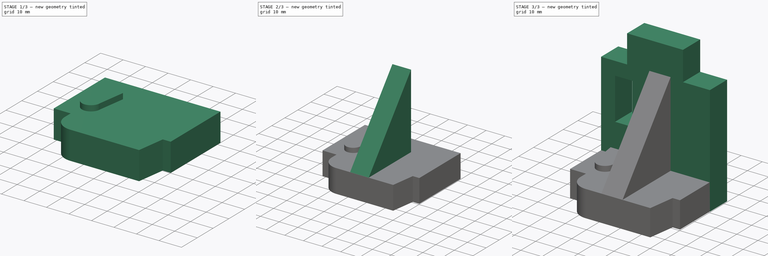
[diagram: build sequence overview — one tinted view per stage of 3, left to right]
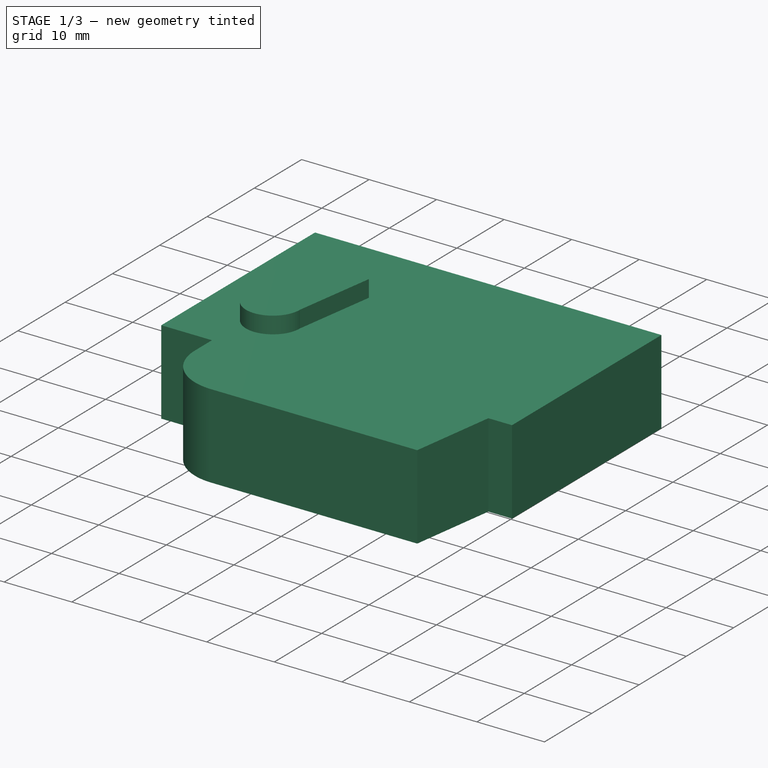
[diagram: stage 1 of 3 — iso view after this stage's code; geometry added in this stage tinted green]
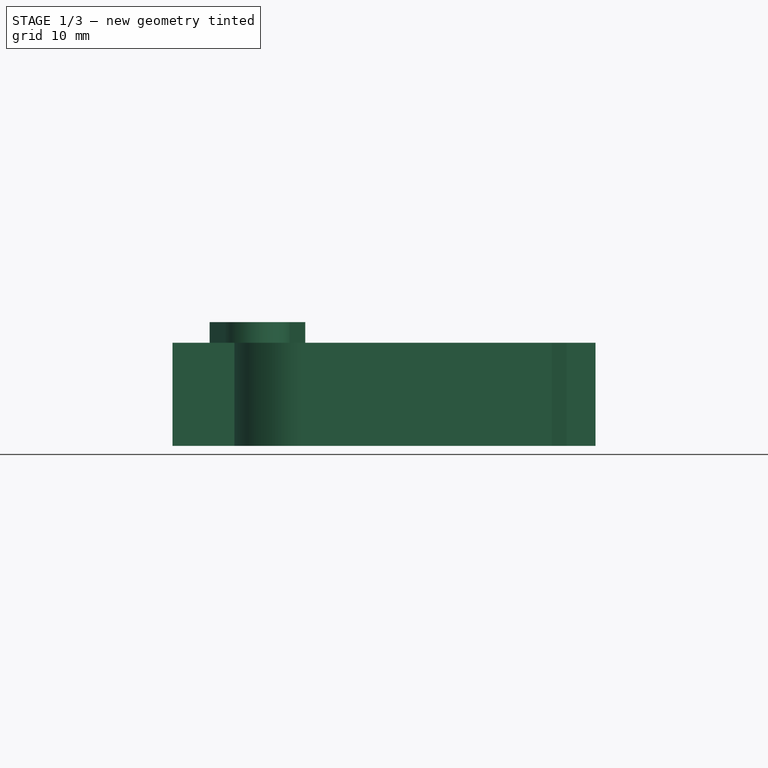
[diagram: stage 1 of 3 — front view after this stage's code; geometry added in this stage tinted green]
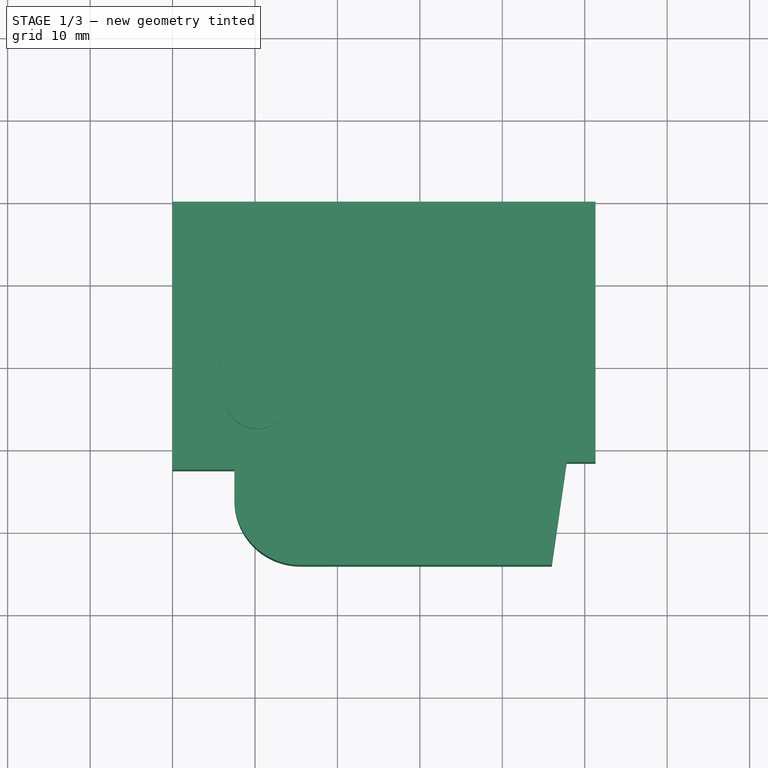
[diagram: stage 1 of 3 — top view after this stage's code; geometry added in this stage tinted green]
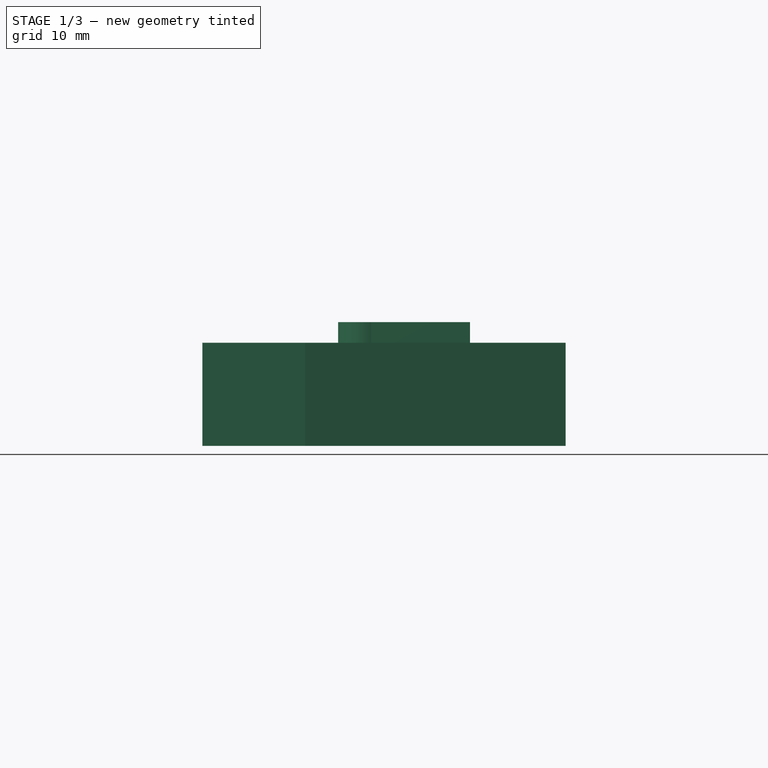
[diagram: stage 1 of 3 — right view after this stage's code; geometry added in this stage tinted green]
FCSTD DOCUMENT  (FreeCAD 0.16R6712 (Git))
Label: pieza-3
License: All rights reserved
LicenseURL: http://en.wikipedia.org/wiki/All_rights_reserved
objects: Sketcher::SketchObject×4, PartDesign::Pad×4, Part::MultiFuse×1
note: 13 computed .brp shape members not serialized (recipe doc carries the construction recipe); baked Part::Feature solids carry a one-line shape summary decoded from their .brp

FEATURE [Sketcher::SketchObject] Sketch
  sketch-geometry (9):
    g0: LineSegment StartX=0 StartY=0 StartZ=0 EndX=51.3 EndY=0 EndZ=0
    g1: LineSegment StartX=51.3 StartY=0 StartZ=0 EndX=51.3 EndY=-31.6 EndZ=0
    g2: LineSegment StartX=51.3 StartY=-31.6 StartZ=0 EndX=47.8 EndY=-31.6 EndZ=0
    g3: LineSegment StartX=47.8 StartY=-31.6 StartZ=0 EndX=46 EndY=-44.0708 EndZ=0
    g4: LineSegment StartX=46 StartY=-44.0708 StartZ=0 EndX=15.5 EndY=-44.0708 EndZ=0
    g5: LineSegment StartX=7.5 StartY=-36.0708 StartZ=0 EndX=7.5 EndY=-32.5 EndZ=0
    g6: LineSegment StartX=7.5 StartY=-32.5 StartZ=0 EndX=0 EndY=-32.5 EndZ=0
    g7: LineSegment StartX=0 StartY=-32.5 StartZ=0 EndX=0 EndY=0 EndZ=0
    g8: ArcOfCircle CenterX=15.5 CenterY=-36.0708 CenterZ=0 NormalX=0 NormalY=0 NormalZ=1 Radius=8 StartAngle=3.14159 EndAngle=4.71239
  constraints (25):
    c: Horizontal(g0)
    c: Coincident(g0,g1)
    c: Coincident(g1,g2)
    c: Horizontal(g2)
    c: Coincident(g2,g3)
    c: Coincident(g3,g4)
    c: Horizontal(g4)
    c: Vertical(g5)
    c: Coincident(g5,g6)
    c: Horizontal(g6)
    c: Coincident(g7,g6)
    c: Coincident(g0,g7)
    c: Vertical(g1)
    c: Vertical(g7)
    c: DistanceX(g0,g0) = 51.3
    c: Tangent(g5,g8) = 1.5708
    c: Tangent(g4,g8) = 1.5708
    c: Radius(g8) = 8
    c: DistanceY(g7,g7) = 32.5
    c: DistanceY(g1,g1) = 31.6
    c: DistanceX(g6,g5) = 7.5
    c: DistanceX(g2,g2) = 3.5
    c: Distance(g3) = 12.6
    c: DistanceX(g4,g4) = 30.5
    c: Coincident(g0,g-1)
FEATURE [PartDesign::Pad] Pad  label="base-inicial"
  Length = 12.5
  Length2 = 100
  Sketch = -> Sketch
  Type = 0
FEATURE [Sketcher::SketchObject] Sketch003
  Placement = pos=(0,0,12.5) rot=(0,0,1;0rad)
  Support = -> Pad [Face11]
  sketch-geometry (5):
    g0: LineSegment StartX=4.5 StartY=-11.6 StartZ=0 EndX=16.1 EndY=-11.6 EndZ=0
    g1: LineSegment StartX=16.1 StartY=-11.6 StartZ=0 EndX=14.3 EndY=-23.6 EndZ=0
    g2: LineSegment StartX=6.3 StartY=-23.6 StartZ=0 EndX=4.5 EndY=-11.6 EndZ=0
    g3: ArcOfCircle CenterX=10.3 CenterY=-23.6 CenterZ=0 NormalX=0 NormalY=0 NormalZ=1 Radius=4 StartAngle=3.14159 EndAngle=6.28319
    g4: LineSegment [constr] StartX=6.3 StartY=-23.6 StartZ=0 EndX=14.3 EndY=-23.6 EndZ=0
  constraints (15):
    c: DistanceY(g0,g-1) = 11.6
    c: Coincident(g0,g2)
    c: Horizontal(g0)
    c: Coincident(g0,g1)
    c: Equal(g2,g1)
    c: Coincident(g2,g3)
    c: Coincident(g1,g3)
    c: Coincident(g4,g2)
    c: Coincident(g4,g1)
    c: Horizontal(g4)
    c: PointOnObject(g3,g4)
    c: DistanceX(g0,g0) = 11.6
    c: Radius(g3) = 4
    c: DistanceX(g-1,g0) = 4.5
    c: DistanceY(g2,g0) = 12
FEATURE [PartDesign::Pad] Pad003  label="base"
  Length = 2.5
  Length2 = 100
  Sketch = -> Sketch003
  Type = 0
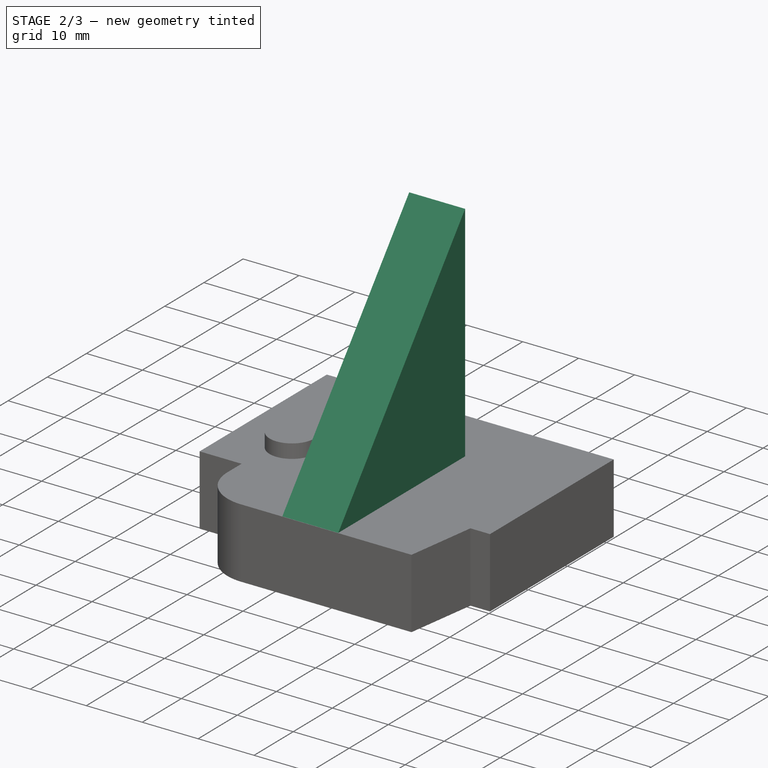
[diagram: stage 2 of 3 — iso view after this stage's code; geometry added in this stage tinted green]
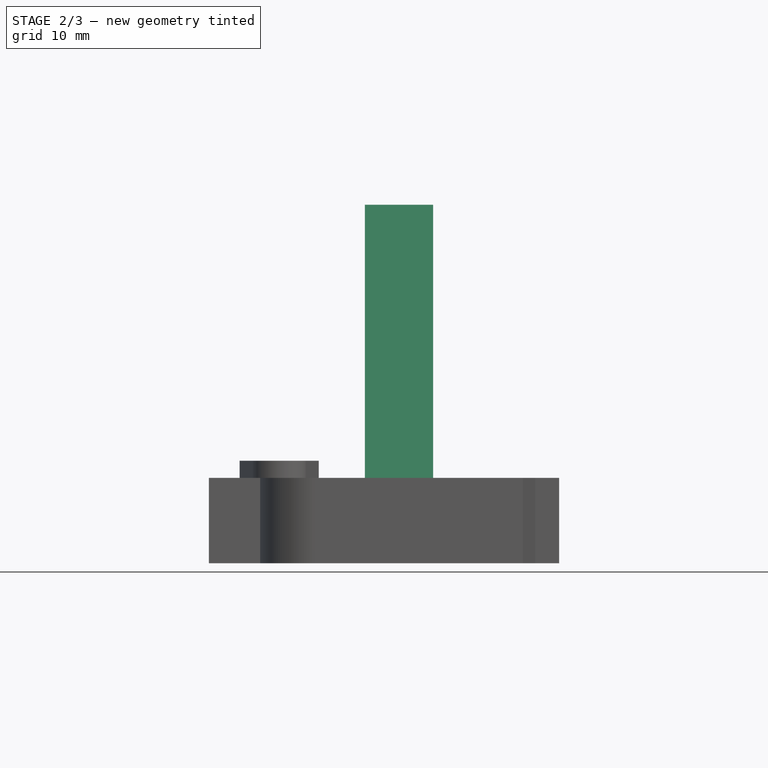
[diagram: stage 2 of 3 — front view after this stage's code; geometry added in this stage tinted green]
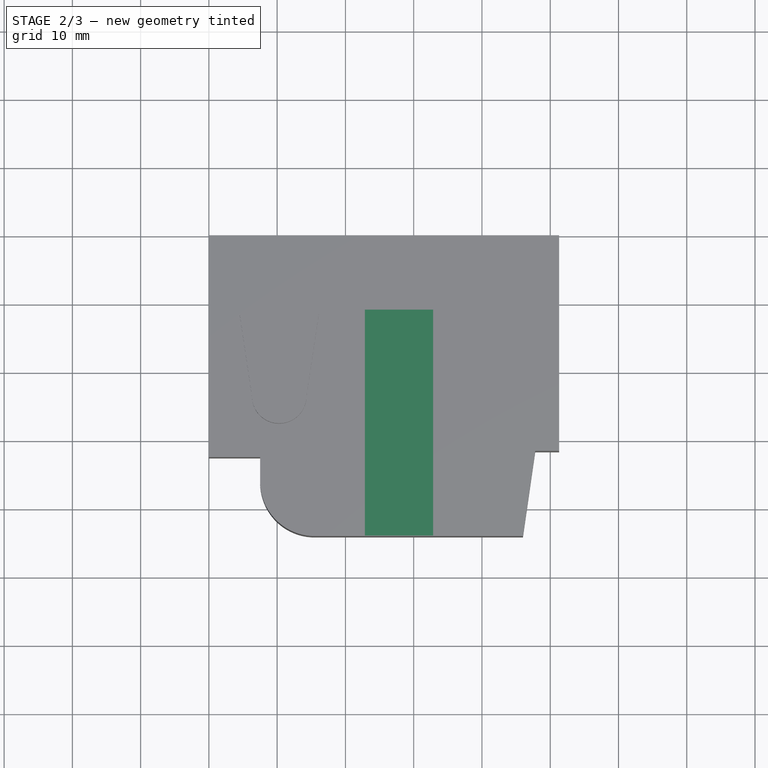
[diagram: stage 2 of 3 — top view after this stage's code; geometry added in this stage tinted green]
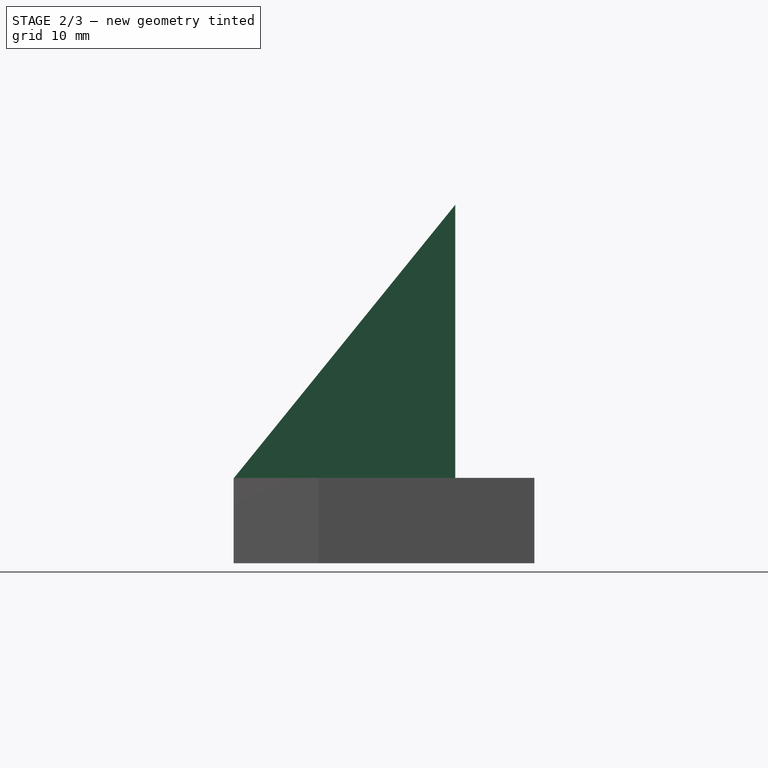
[diagram: stage 2 of 3 — right view after this stage's code; geometry added in this stage tinted green]
FEATURE [Sketcher::SketchObject] Sketch002
  Placement = pos=(22.85,0,0) rot=(0.57735,0.57735,0.57735;2.0944rad)
  sketch-geometry (3):
    g0: LineSegment StartX=-44 StartY=12.5 StartZ=0 EndX=-11.6 EndY=12.5 EndZ=0
    g1: LineSegment StartX=-11.6 StartY=12.5 StartZ=0 EndX=-11.6 EndY=52.5 EndZ=0
    g2: LineSegment StartX=-11.6 StartY=52.5 StartZ=0 EndX=-44 EndY=12.5 EndZ=0
  constraints (9):
    c: Horizontal(g0)
    c: Coincident(g0,g1)
    c: Vertical(g1)
    c: Coincident(g1,g2)
    c: Coincident(g2,g0)
    c: DistanceY(g-1,g0) = 12.5
    c: DistanceX(g0,g-1) = 11.6
    c: DistanceY(g1,g1) = 40
    c: DistanceX(g0,g0) = 32.4
FEATURE [PartDesign::Pad] Pad002  label="escuadra"
  Length = 10
  Length2 = 100
  Placement = pos=(22.85,0,0) rot=(0.57735,0.57735,0.57735;2.0944rad)
  Sketch = -> Sketch002
  Type = 0
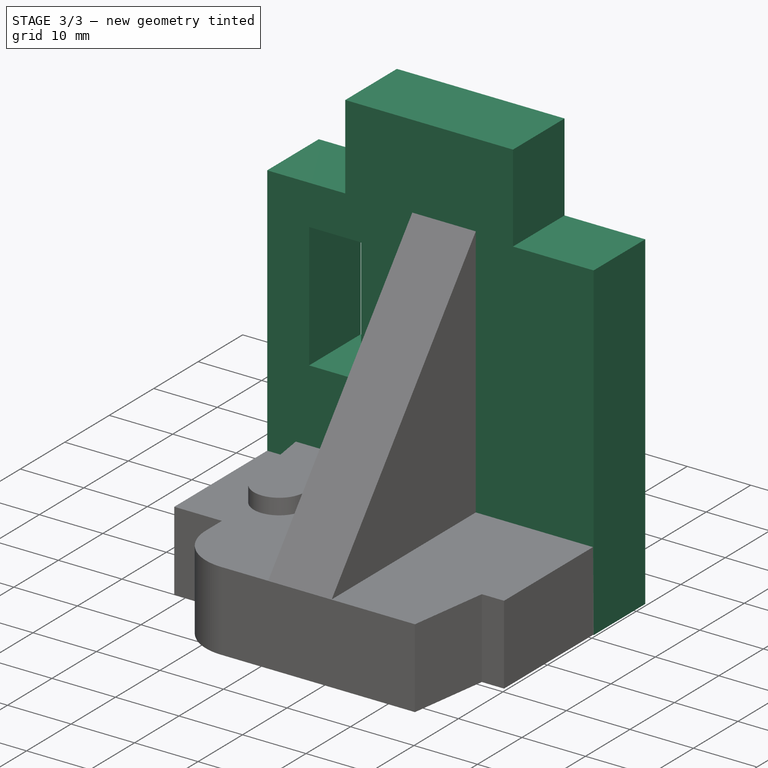
[diagram: stage 3 of 3 — iso view after this stage's code; geometry added in this stage tinted green]
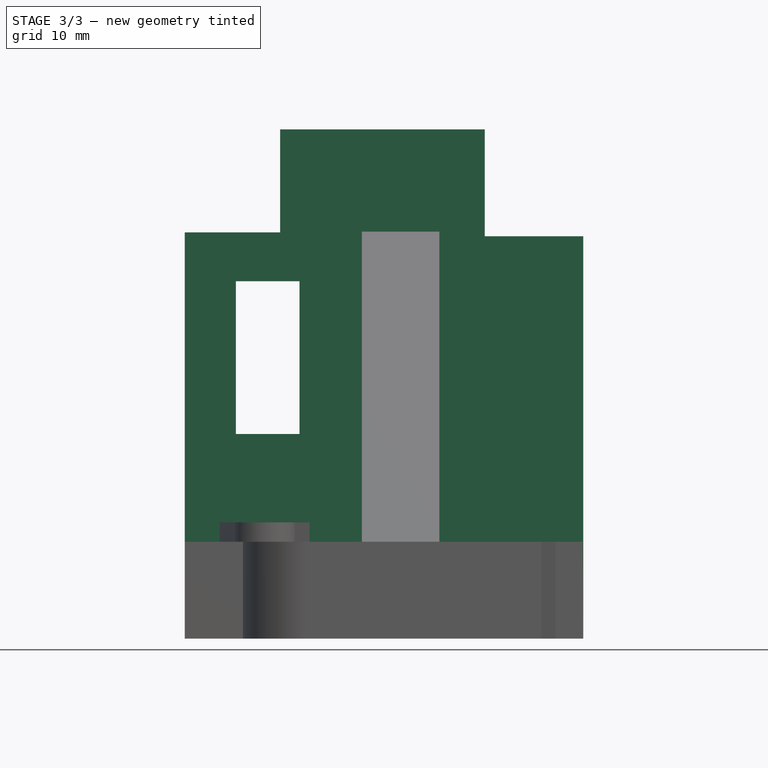
[diagram: stage 3 of 3 — front view after this stage's code; geometry added in this stage tinted green]
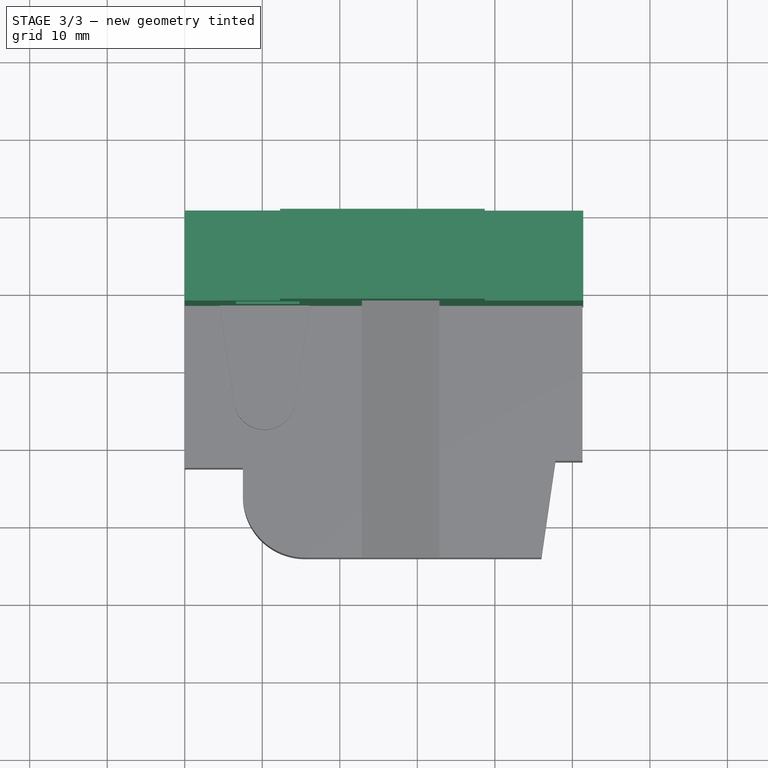
[diagram: stage 3 of 3 — top view after this stage's code; geometry added in this stage tinted green]
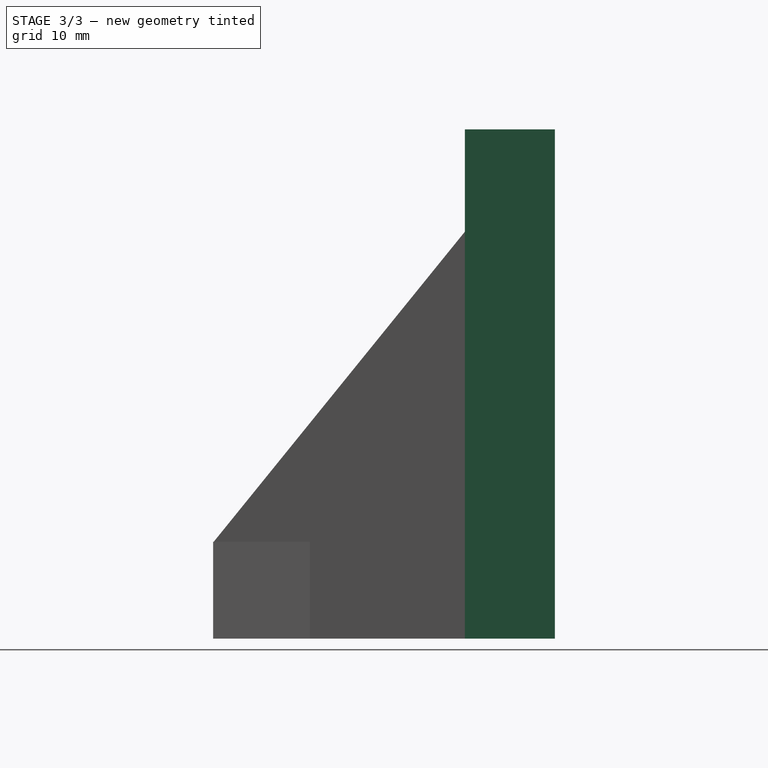
[diagram: stage 3 of 3 — right view after this stage's code; geometry added in this stage tinted green]
FEATURE [Sketcher::SketchObject] Sketch001
  Placement = pos=(0,0,0) rot=(1,0,0;1.5708rad)
  sketch-geometry (12):
    g0: LineSegment StartX=0 StartY=0 StartZ=0 EndX=0 EndY=52.4 EndZ=0
    g1: LineSegment StartX=0 StartY=52.4 StartZ=0 EndX=12.3 EndY=52.4 EndZ=0
    g2: LineSegment StartX=12.3 StartY=52.4 StartZ=0 EndX=12.3 EndY=65.7 EndZ=0
    g3: LineSegment StartX=12.3 StartY=65.7 StartZ=0 EndX=38.7 EndY=65.7 EndZ=0
    g4: LineSegment StartX=38.7 StartY=65.7 StartZ=0 EndX=38.7 EndY=51.9 EndZ=0
    g5: LineSegment StartX=38.7 StartY=51.9 StartZ=0 EndX=51.4 EndY=51.9 EndZ=0
    g6: LineSegment StartX=51.4 StartY=51.9 StartZ=0 EndX=51.4 EndY=0 EndZ=0
    g7: LineSegment StartX=51.4 StartY=0 StartZ=0 EndX=0 EndY=0 EndZ=0
    g8: LineSegment StartX=6.6 StartY=46.1 StartZ=0 EndX=14.8 EndY=46.1 EndZ=0
    g9: LineSegment StartX=14.8 StartY=46.1 StartZ=0 EndX=14.8 EndY=26.4 EndZ=0
    g10: LineSegment StartX=14.8 StartY=26.4 StartZ=0 EndX=6.6 EndY=26.4 EndZ=0
    g11: LineSegment StartX=6.6 StartY=26.4 StartZ=0 EndX=6.6 EndY=46.1 EndZ=0
  constraints (35):
    c: Coincident(g-1,g0)
    c: Vertical(g0)
    c: Coincident(g0,g1)
    c: Horizontal(g1)
    c: Coincident(g1,g2)
    c: Vertical(g2)
    c: Coincident(g2,g3)
    c: Horizontal(g3)
    c: Coincident(g3,g4)
    c: Vertical(g4)
    c: Coincident(g4,g5)
    c: Coincident(g5,g6)
    c: Vertical(g6)
    c: Coincident(g6,g7)
    c: Coincident(g7,g0)
    c: Horizontal(g7)
    c: Horizontal(g5)
    c: DistanceX(g7,g7) = 51.4
    c: DistanceY(g6,g5) = 51.9
    c: DistanceX(g4,g5) = 12.7
    c: DistanceY(g0,g0) = 52.4
    c: DistanceX(g1,g1) = 12.3
    c: DistanceY(g2,g2) = 13.3
    c: Coincident(g8,g9)
    c: Coincident(g9,g10)
    c: Coincident(g10,g11)
    c: Coincident(g11,g8)
    c: Horizontal(g8)
    c: Horizontal(g10)
    c: Vertical(g9)
    c: Vertical(g11)
    c: DistanceX(g0,g8) = 6.6
    c: DistanceY(g8,g0) = 6.3
    c: DistanceX(g8,g8) = 8.2
    c: DistanceY(g9,g9) = 19.7
FEATURE [PartDesign::Pad] Pad001  label="vertical-orificio"
  Length = 11.6
  Length2 = 100
  Placement = pos=(0,0,0) rot=(1,0,0;1.5708rad)
  Sketch = -> Sketch001
  Type = 0
FEATURE [Part::MultiFuse] Fusion  label="Escuadra-central"
  Shapes = -> [Pad003,Pad002,Pad001]
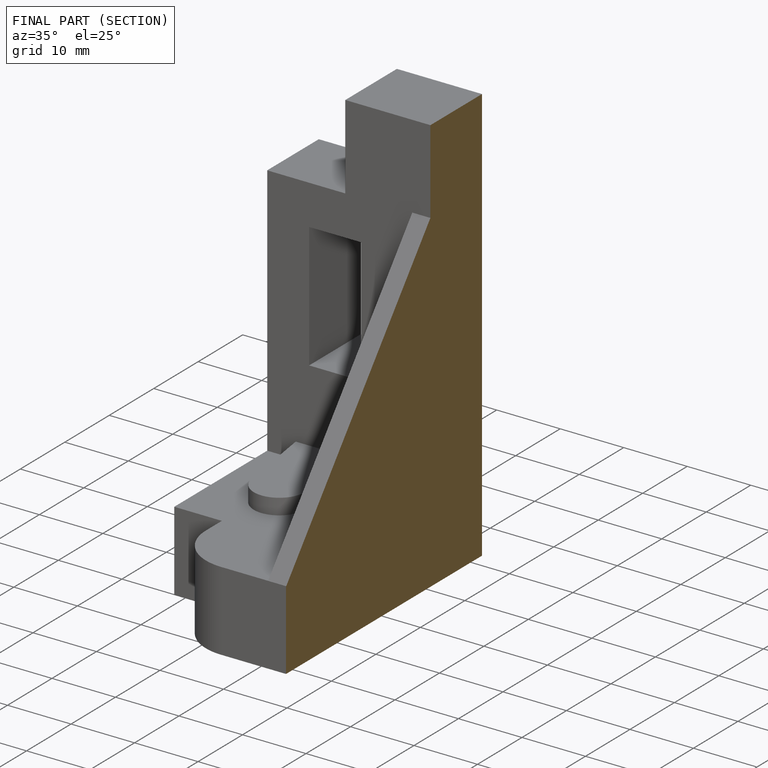
[diagram: finished part — half-section view (interior)]
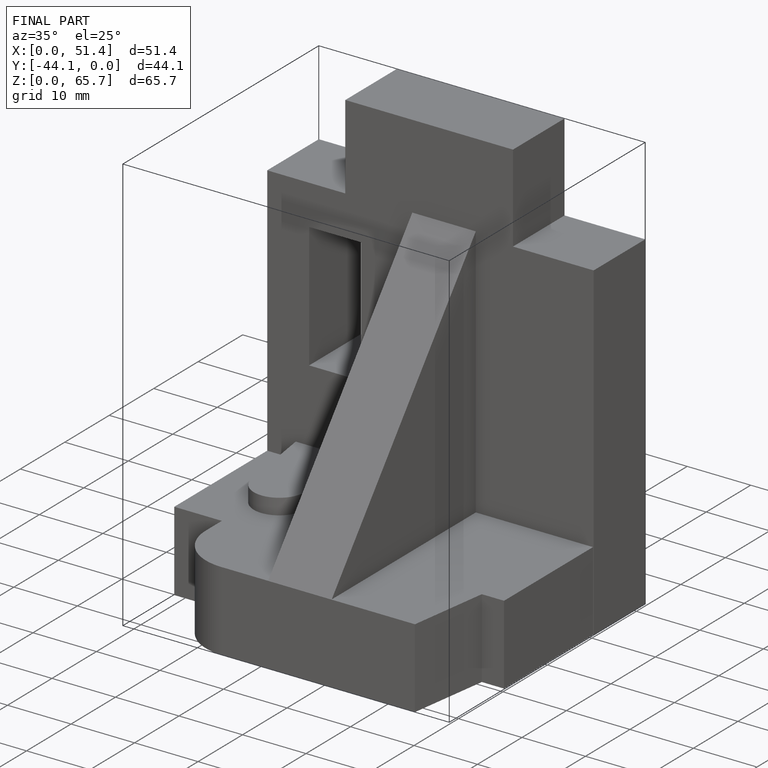
[diagram: finished part — iso view with bounding-box wireframe]
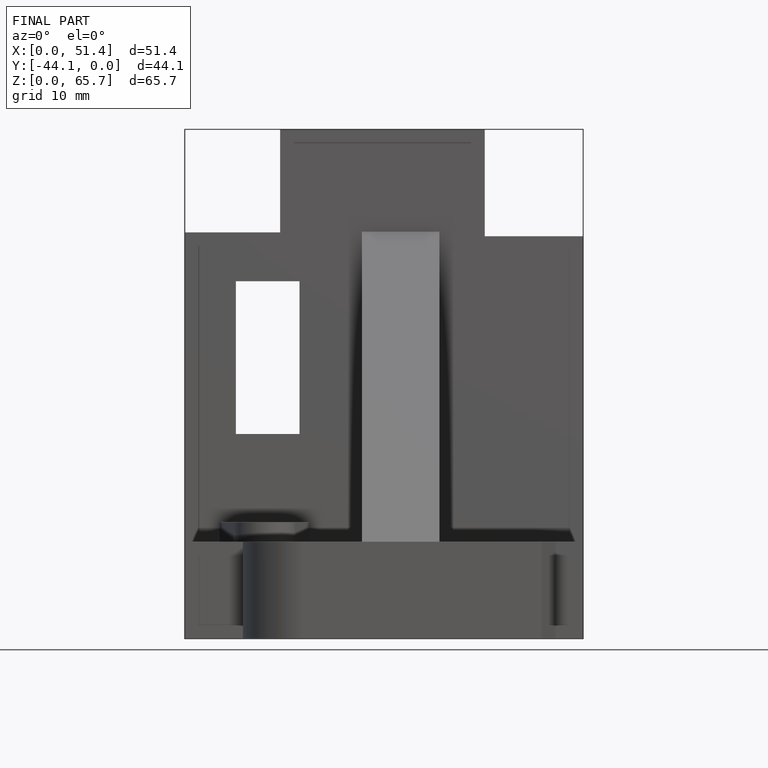
[diagram: finished part — front view with bounding-box wireframe]
